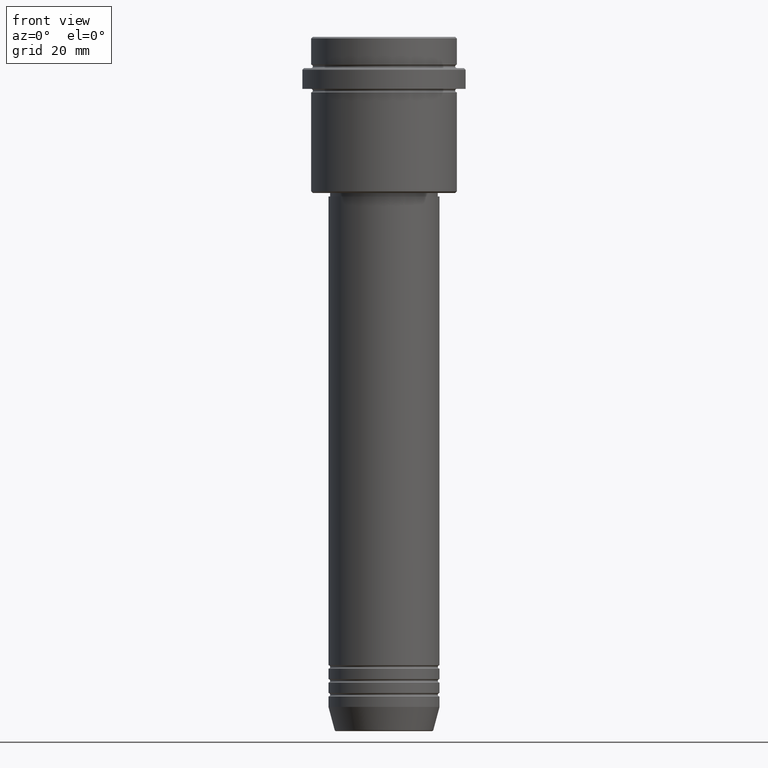
[diagram: clean part render]
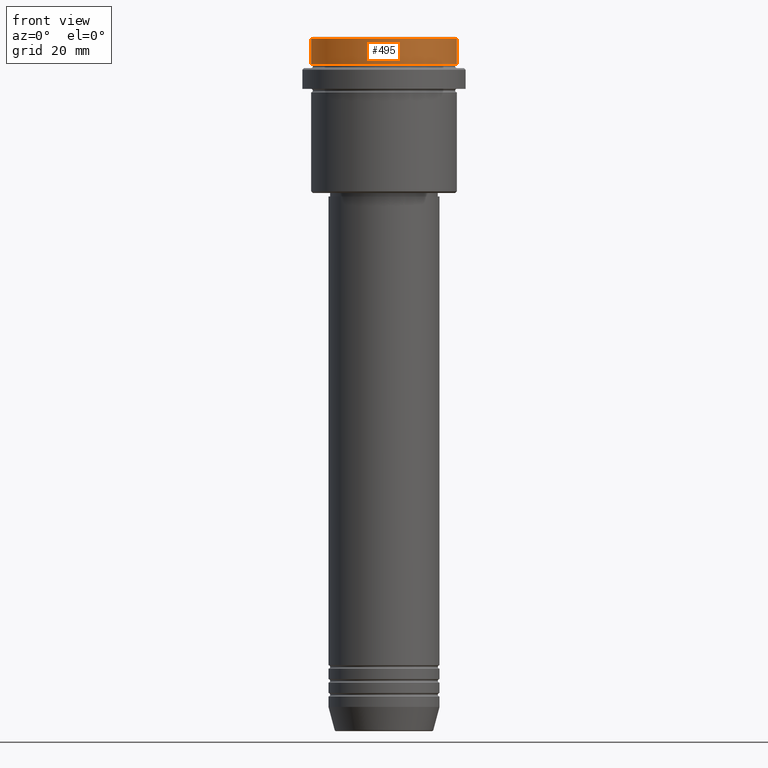
[diagram: same view with one face highlighted and labeled with its STEP entity id]
A machine part, front view. The second image highlights one B-rep face of the part: STEP entity #495.
In plain terms, the highlighted cylindrical surface (partial cylindrical patch) has radius 21 mm, axis along (-0, -0, 1).
Its self-contained STEP definition (entity closure, byte-faithful):
#28 = DIRECTION ( 'NONE',  ( 1.000000000000000000, 0.000000000000000000, 0.000000000000000000 ) ) ;
#44 = ORIENTED_EDGE ( 'NONE', *, *, #121, .T. ) ;
#73 = DIRECTION ( 'NONE',  ( 1.000000000000000000, 0.000000000000000000, 0.000000000000000000 ) ) ;
#121 = EDGE_CURVE ( 'NONE', #1281, #989, #1105, .T. ) ;
#207 = DIRECTION ( 'NONE',  ( -0.000000000000000000, -0.000000000000000000, 1.000000000000000000 ) ) ;
#218 = AXIS2_PLACEMENT_3D ( 'NONE', #363, #1152, #73 ) ;
#277 = CARTESIAN_POINT ( 'NONE',  ( -21.00000000000000000, 2.571758278209441661E-15, -0.5000000000000108802 ) ) ;
#289 = CYLINDRICAL_SURFACE ( 'NONE', #218, 21.00000000000000000 ) ;
#307 = AXIS2_PLACEMENT_3D ( 'NONE', #1114, #997, #28 ) ;
#362 = EDGE_CURVE ( 'NONE', #989, #548, #1035, .T. ) ;
#363 = CARTESIAN_POINT ( 'NONE',  ( 0.000000000000000000, 0.000000000000000000, 0.000000000000000000 ) ) ;
#495 = ADVANCED_FACE ( 'NONE', ( #1254 ), #289, .T. ) ;
#496 = DIRECTION ( 'NONE',  ( 1.000000000000000000, 0.000000000000000000, 0.000000000000000000 ) ) ;
#507 = LINE ( 'NONE', #1271, #1385 ) ;
#519 = EDGE_CURVE ( 'NONE', #703, #548, #507, .T. ) ;
#548 = VERTEX_POINT ( 'NONE', #277 ) ;
#638 = ORIENTED_EDGE ( 'NONE', *, *, #724, .T. ) ;
#682 = CIRCLE ( 'NONE', #307, 21.00000000000000000 ) ;
#703 = VERTEX_POINT ( 'NONE', #717 ) ;
#717 = CARTESIAN_POINT ( 'NONE',  ( -21.00000000000000000, 2.571758278209441661E-15, -7.999999999999998224 ) ) ;
#724 = EDGE_CURVE ( 'NONE', #703, #1281, #682, .T. ) ;
#740 = CARTESIAN_POINT ( 'NONE',  ( 21.00000000000000000, 0.000000000000000000, -7.999999999999998224 ) ) ;
#773 = CARTESIAN_POINT ( 'NONE',  ( 21.00000000000000000, 0.000000000000000000, 0.000000000000000000 ) ) ;
#855 = CARTESIAN_POINT ( 'NONE',  ( 21.00000000000000000, 0.000000000000000000, -0.5000000000000108802 ) ) ;
#882 = EDGE_LOOP ( 'NONE', ( #1165, #638, #44, #1397 ) ) ;
#931 = AXIS2_PLACEMENT_3D ( 'NONE', #1233, #1138, #496 ) ;
#989 = VERTEX_POINT ( 'NONE', #855 ) ;
#997 = DIRECTION ( 'NONE',  ( -0.000000000000000000, -0.000000000000000000, 1.000000000000000000 ) ) ;
#1035 = CIRCLE ( 'NONE', #931, 21.00000000000000000 ) ;
#1105 = LINE ( 'NONE', #773, #1207 ) ;
#1114 = CARTESIAN_POINT ( 'NONE',  ( 0.000000000000000000, 0.000000000000000000, -7.999999999999998224 ) ) ;
#1138 = DIRECTION ( 'NONE',  ( 0.000000000000000000, 0.000000000000000000, -1.000000000000000000 ) ) ;
#1152 = DIRECTION ( 'NONE',  ( -0.000000000000000000, -0.000000000000000000, 1.000000000000000000 ) ) ;
#1165 = ORIENTED_EDGE ( 'NONE', *, *, #519, .F. ) ;
#1207 = VECTOR ( 'NONE', #1345, 1000.000000000000000 ) ;
#1233 = CARTESIAN_POINT ( 'NONE',  ( 0.000000000000000000, 0.000000000000000000, -0.5000000000000108802 ) ) ;
#1254 = FACE_OUTER_BOUND ( 'NONE', #882, .T. ) ;
#1271 = CARTESIAN_POINT ( 'NONE',  ( -21.00000000000000000, 2.571758278209441661E-15, 0.000000000000000000 ) ) ;
#1281 = VERTEX_POINT ( 'NONE', #740 ) ;
#1345 = DIRECTION ( 'NONE',  ( -0.000000000000000000, -0.000000000000000000, 1.000000000000000000 ) ) ;
#1385 = VECTOR ( 'NONE', #207, 1000.000000000000000 ) ;
#1397 = ORIENTED_EDGE ( 'NONE', *, *, #362, .T. ) ;